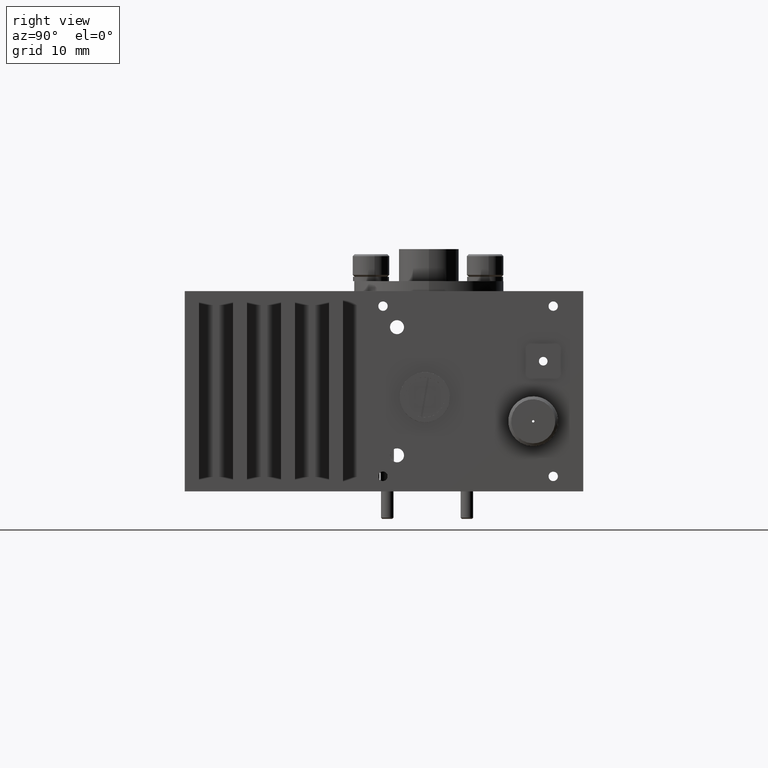
[diagram: clean part render]
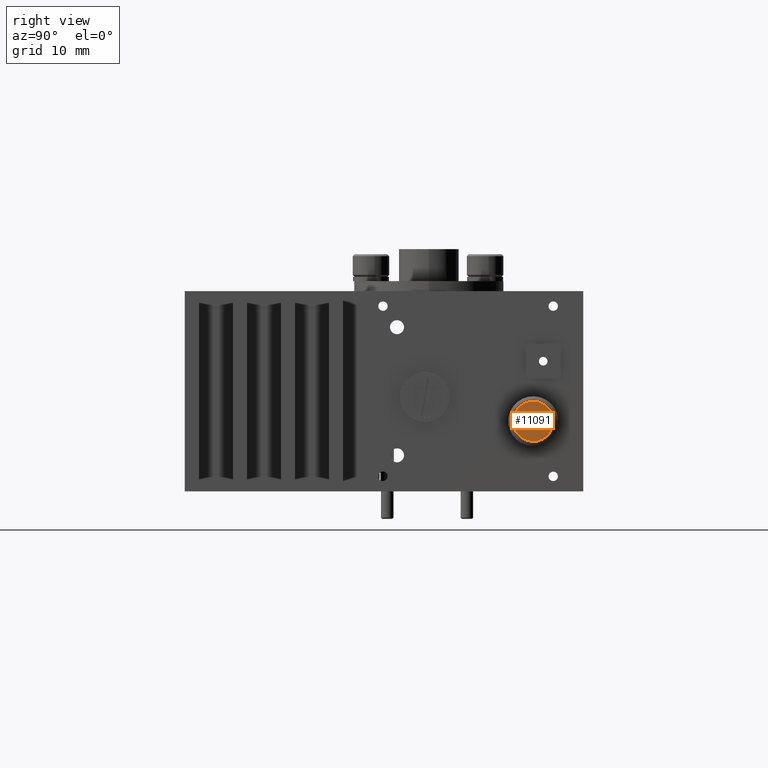
[diagram: same view with one face highlighted and labeled with its STEP entity id]
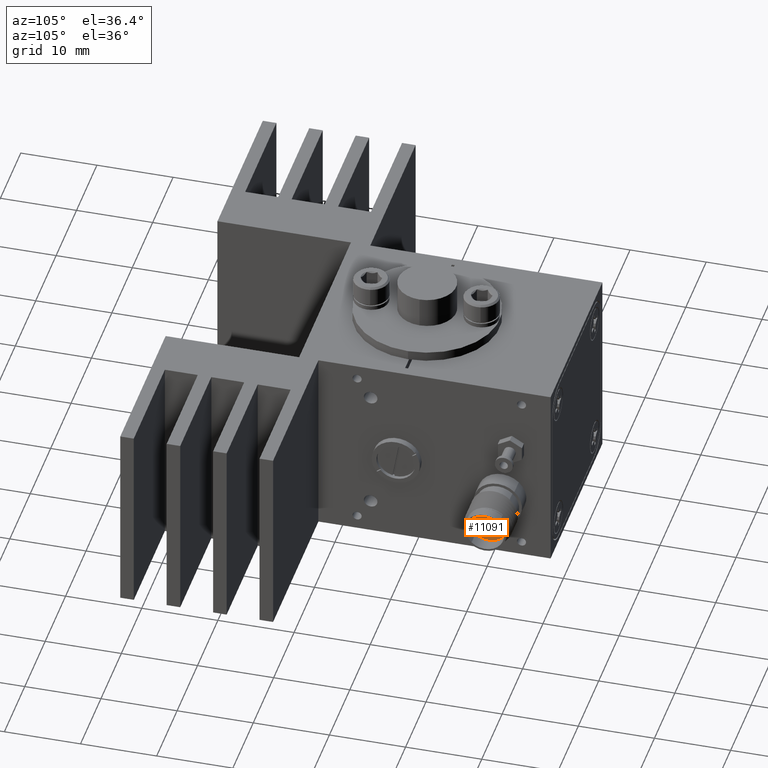
[diagram: same view with one face highlighted and labeled with its STEP entity id]
A machine part, right view. The second image highlights one B-rep face of the part: STEP entity #11091.
A second angle (auxiliary view) of the same face is appended — the face is thin or edge-on in the first view.
In plain terms, the highlighted planar face has unit normal (1, -0, -0).
Its self-contained STEP definition (entity closure, byte-faithful):
#120 = DIRECTION ( 'NONE',  ( 1.000000000000000000, -5.422418959242884400E-017, -4.083264915325813900E-017 ) ) ;
#143 = AXIS2_PLACEMENT_3D ( 'NONE', #8166, #120, #10868 ) ;
#2351 = ORIENTED_EDGE ( 'NONE', *, *, #9659, .F. ) ;
#3860 = DIRECTION ( 'NONE',  ( 1.000000000000000000, -5.422418959242883800E-017, -4.083264915325813900E-017 ) ) ;
#3942 = DIRECTION ( 'NONE',  ( 0.0000000000000000000, -0.6850925880956202400, -0.7284560012357951300 ) ) ;
#4041 = CIRCLE ( 'NONE', #143, 2.540000000000000500 ) ;
#4790 = EDGE_LOOP ( 'NONE', ( #5230, #2351 ) ) ;
#5041 = DIRECTION ( 'NONE',  ( 1.000000000000000000, -5.422418959242884400E-017, -4.083264915325813900E-017 ) ) ;
#5073 = CIRCLE ( 'NONE', #13273, 2.540000000000000500 ) ;
#5230 = ORIENTED_EDGE ( 'NONE', *, *, #9920, .F. ) ;
#6042 = CIRCLE ( 'NONE', #15288, 0.1524000000000001700 ) ;
#6076 = CARTESIAN_POINT ( 'NONE',  ( 19.27860000000001200, 14.44013517376287400, -1.959721756861073600 ) ) ;
#6506 = PLANE ( 'NONE',  #12157 ) ;
#6568 = CARTESIAN_POINT ( 'NONE',  ( 19.27860000000001200, 12.69999999999999800, -3.809999999999992900 ) ) ;
#7140 = ORIENTED_EDGE ( 'NONE', *, *, #15362, .T. ) ;
#7405 = DIRECTION ( 'NONE',  ( 1.000000000000000000, -5.422418959242884400E-017, -4.083264915325813900E-017 ) ) ;
#7432 = CARTESIAN_POINT ( 'NONE',  ( 19.27860000000001200, 12.80440811042577000, -3.698983305411657900 ) ) ;
#7615 = VERTEX_POINT ( 'NONE', #14617 ) ;
#8166 = CARTESIAN_POINT ( 'NONE',  ( 19.27860000000001200, 12.69999999999999800, -3.809999999999992900 ) ) ;
#8260 = VERTEX_POINT ( 'NONE', #7432 ) ;
#9145 = DIRECTION ( 'NONE',  ( -6.689337870731126900E-017, -0.6850925880956203500, -0.7284560012357951300 ) ) ;
#9413 = CIRCLE ( 'NONE', #15961, 0.1524000000000001700 ) ;
#9659 = EDGE_CURVE ( 'NONE', #8260, #7615, #9413, .T. ) ;
#9728 = VERTEX_POINT ( 'NONE', #14432 ) ;
#9920 = EDGE_CURVE ( 'NONE', #7615, #8260, #6042, .T. ) ;
#10711 = ORIENTED_EDGE ( 'NONE', *, *, #13604, .T. ) ;
#10868 = DIRECTION ( 'NONE',  ( 0.0000000000000000000, -0.6850925880956202400, -0.7284560012357951300 ) ) ;
#11091 = ADVANCED_FACE ( 'NONE', ( #15022, #12511 ), #6506, .T. ) ;
#12157 = AXIS2_PLACEMENT_3D ( 'NONE', #15725, #3860, #9145 ) ;
#12511 = FACE_OUTER_BOUND ( 'NONE', #16324, .T. ) ;
#13093 = CARTESIAN_POINT ( 'NONE',  ( 19.27860000000001200, 12.69999999999999800, -3.809999999999992900 ) ) ;
#13273 = AXIS2_PLACEMENT_3D ( 'NONE', #13093, #5041, #3942 ) ;
#13313 = DIRECTION ( 'NONE',  ( 1.000000000000000000, -5.422418959242884400E-017, -4.083264915325813900E-017 ) ) ;
#13604 = EDGE_CURVE ( 'NONE', #9728, #16767, #5073, .T. ) ;
#14432 = CARTESIAN_POINT ( 'NONE',  ( 19.27860000000001200, 10.95986482623712100, -5.660278243138913400 ) ) ;
#14617 = CARTESIAN_POINT ( 'NONE',  ( 19.27860000000001200, 12.59559188957422500, -3.921016694588328000 ) ) ;
#15022 = FACE_BOUND ( 'NONE', #4790, .T. ) ;
#15288 = AXIS2_PLACEMENT_3D ( 'NONE', #6568, #13313, #16032 ) ;
#15362 = EDGE_CURVE ( 'NONE', #16767, #9728, #4041, .T. ) ;
#15725 = CARTESIAN_POINT ( 'NONE',  ( 19.27860000000001200, 12.69999999999999800, -3.809999999999992900 ) ) ;
#15961 = AXIS2_PLACEMENT_3D ( 'NONE', #16730, #7405, #16782 ) ;
#16032 = DIRECTION ( 'NONE',  ( 0.0000000000000000000, -0.6850925880956223500, -0.7284560012357931300 ) ) ;
#16324 = EDGE_LOOP ( 'NONE', ( #10711, #7140 ) ) ;
#16730 = CARTESIAN_POINT ( 'NONE',  ( 19.27860000000001200, 12.69999999999999800, -3.809999999999992900 ) ) ;
#16767 = VERTEX_POINT ( 'NONE', #6076 ) ;
#16782 = DIRECTION ( 'NONE',  ( 0.0000000000000000000, -0.6850925880956223500, -0.7284560012357931300 ) ) ;